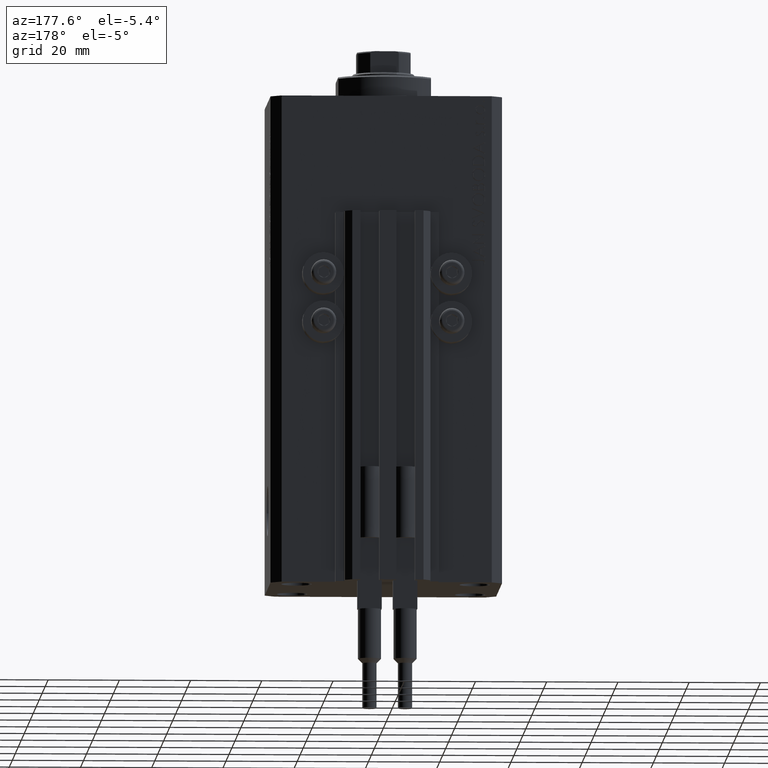
[diagram: clean part render]
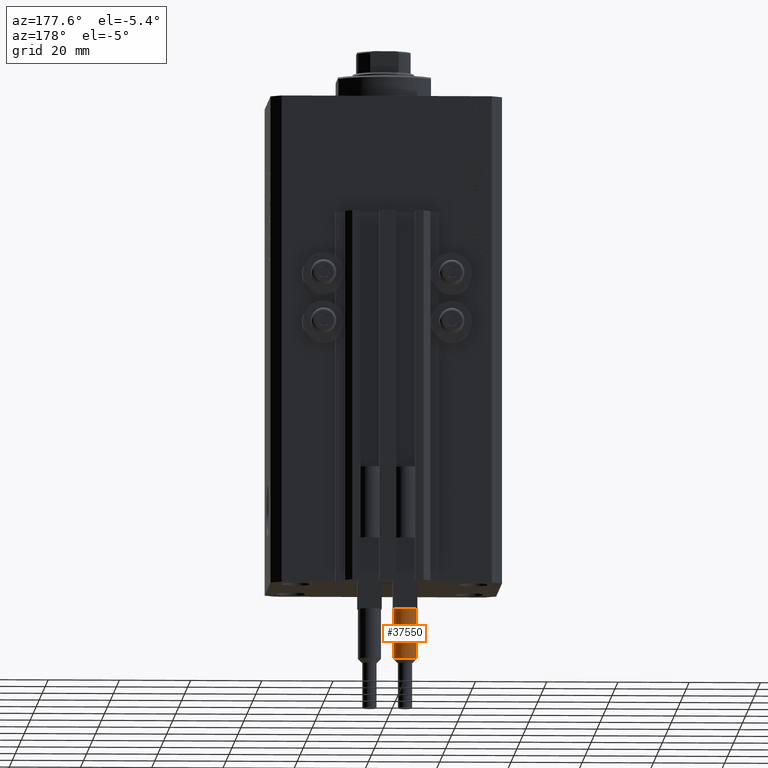
[diagram: same view with one face highlighted and labeled with its STEP entity id]
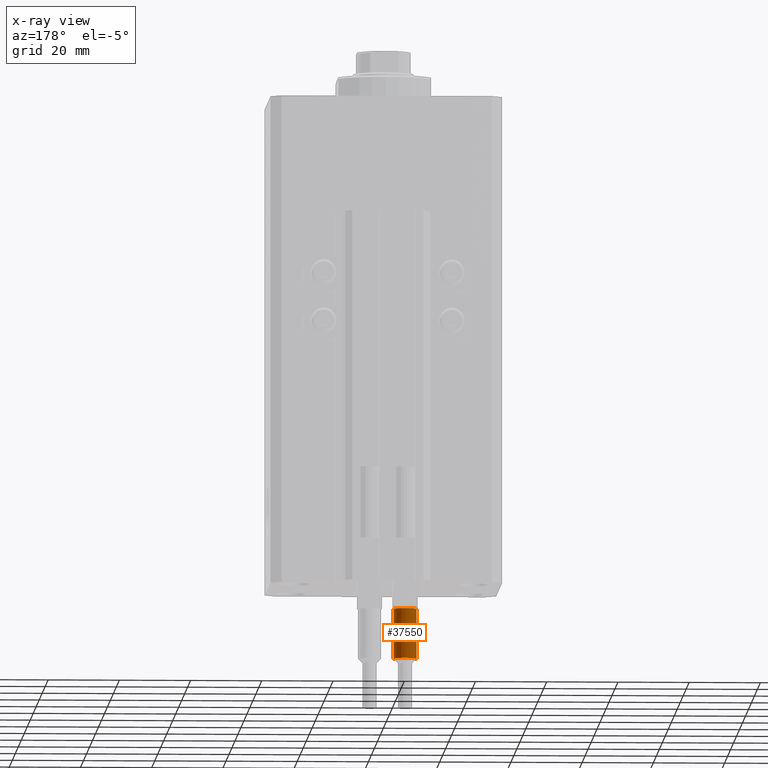
[diagram: x-ray of the same camera — body ghosted, the highlighted face saturated]
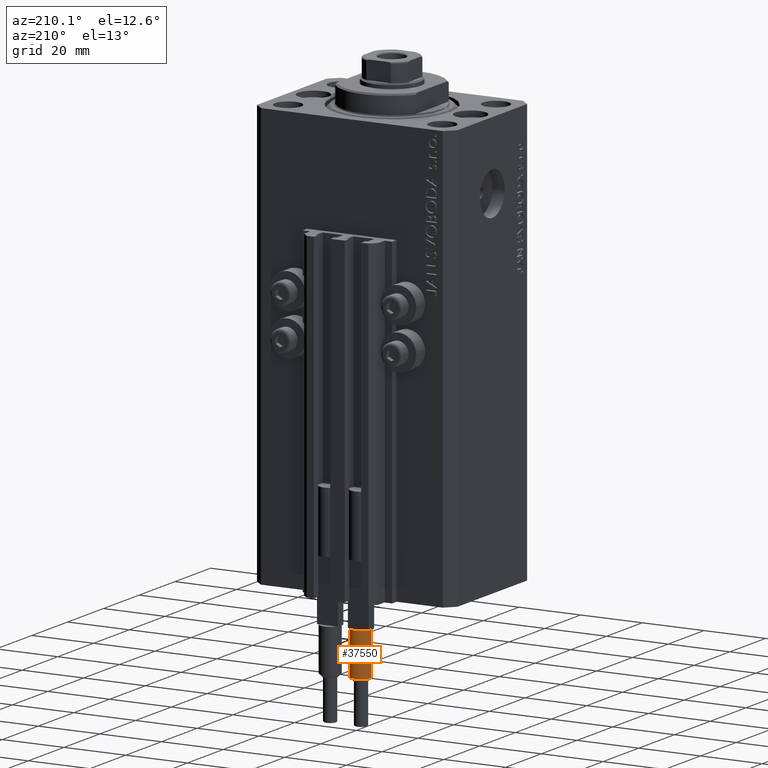
[diagram: same view with one face highlighted and labeled with its STEP entity id]
A machine part, auxiliary view. The second image highlights one B-rep face of the part: STEP entity #37550.
The next image is the same camera in x-ray: the body ghosted, the highlighted face saturated — about 0% of this face is hidden behind the body in this view.
A second angle (auxiliary view) of the same face is appended — the face is thin or edge-on in the first view.
In plain terms, the highlighted cylindrical surface (edge-blend (fillet) strip) has radius 3.25 mm, axis along (-0, -0, 1).
Its self-contained STEP definition (entity closure, byte-faithful):
#1335 = VERTEX_POINT ( 'NONE', #21337 ) ;
#1918 = EDGE_LOOP ( 'NONE', ( #47650, #30534, #33793, #23078, #33099, #17616 ) ) ;
#5021 = CARTESIAN_POINT ( 'NONE',  ( 0.000000000000000000, 0.000000000000000000, 40.00000000000000000 ) ) ;
#6322 = VERTEX_POINT ( 'NONE', #7562 ) ;
#7009 = EDGE_CURVE ( 'NONE', #44188, #24165, #47499, .T. ) ;
#7486 = DIRECTION ( 'NONE',  ( -0.000000000000000000, -0.000000000000000000, -1.000000000000000000 ) ) ;
#7562 = CARTESIAN_POINT ( 'NONE',  ( -3.250000000000000444, 0.000000000000000000, 53.99999999999998579 ) ) ;
#9304 = AXIS2_PLACEMENT_3D ( 'NONE', #39126, #24324, #42771 ) ;
#9656 = CIRCLE ( 'NONE', #15881, 3.250000000000000444 ) ;
#10310 = CARTESIAN_POINT ( 'NONE',  ( -2.883140648667699146, -1.500000000000000000, 40.00000000000000000 ) ) ;
#10823 = DIRECTION ( 'NONE',  ( 1.000000000000000000, 0.000000000000000000, 0.000000000000000000 ) ) ;
#11108 = DIRECTION ( 'NONE',  ( -0.000000000000000000, -0.000000000000000000, -1.000000000000000000 ) ) ;
#11446 = EDGE_CURVE ( 'NONE', #1335, #22577, #32204, .T. ) ;
#11754 = FACE_OUTER_BOUND ( 'NONE', #1918, .T. ) ;
#12535 = VECTOR ( 'NONE', #7486, 1000.000000000000000 ) ;
#12538 = DIRECTION ( 'NONE',  ( 1.000000000000000000, 0.000000000000000000, 0.000000000000000000 ) ) ;
#13640 = CARTESIAN_POINT ( 'NONE',  ( 3.250000000000000444, 3.980102097228898231E-16, 40.00000000000000000 ) ) ;
#14207 = DIRECTION ( 'NONE',  ( 1.000000000000000000, 0.000000000000000000, 0.000000000000000000 ) ) ;
#14475 = DIRECTION ( 'NONE',  ( 0.000000000000000000, 0.000000000000000000, 1.000000000000000000 ) ) ;
#15881 = AXIS2_PLACEMENT_3D ( 'NONE', #47746, #14475, #10823 ) ;
#16611 = VERTEX_POINT ( 'NONE', #40604 ) ;
#16901 = EDGE_CURVE ( 'NONE', #6322, #1335, #45101, .T. ) ;
#17616 = ORIENTED_EDGE ( 'NONE', *, *, #7009, .T. ) ;
#20785 = DIRECTION ( 'NONE',  ( 0.000000000000000000, 0.000000000000000000, 1.000000000000000000 ) ) ;
#21337 = CARTESIAN_POINT ( 'NONE',  ( -3.250000000000000444, 0.000000000000000000, 40.00000000000000000 ) ) ;
#21824 = LINE ( 'NONE', #36616, #12535 ) ;
#22408 = AXIS2_PLACEMENT_3D ( 'NONE', #30933, #23656, #30454 ) ;
#22577 = VERTEX_POINT ( 'NONE', #10310 ) ;
#23078 = ORIENTED_EDGE ( 'NONE', *, *, #11446, .T. ) ;
#23656 = DIRECTION ( 'NONE',  ( -0.000000000000000000, -0.000000000000000000, -1.000000000000000000 ) ) ;
#23669 = EDGE_CURVE ( 'NONE', #22577, #44188, #9656, .T. ) ;
#24165 = VERTEX_POINT ( 'NONE', #13640 ) ;
#24324 = DIRECTION ( 'NONE',  ( 0.000000000000000000, 0.000000000000000000, -1.000000000000000000 ) ) ;
#25708 = CARTESIAN_POINT ( 'NONE',  ( 2.883140648667699146, -1.500000000000000000, 40.00000000000000000 ) ) ;
#29324 = CARTESIAN_POINT ( 'NONE',  ( -3.250000000000000444, 0.000000000000000000, 56.00000000000000000 ) ) ;
#30246 = CIRCLE ( 'NONE', #9304, 3.250000000000000444 ) ;
#30454 = DIRECTION ( 'NONE',  ( -1.000000000000000000, 0.000000000000000000, 0.000000000000000000 ) ) ;
#30534 = ORIENTED_EDGE ( 'NONE', *, *, #40465, .T. ) ;
#30933 = CARTESIAN_POINT ( 'NONE',  ( 0.000000000000000000, 0.000000000000000000, 56.00000000000000000 ) ) ;
#32204 = CIRCLE ( 'NONE', #43846, 3.250000000000000444 ) ;
#33099 = ORIENTED_EDGE ( 'NONE', *, *, #23669, .T. ) ;
#33793 = ORIENTED_EDGE ( 'NONE', *, *, #16901, .T. ) ;
#34343 = AXIS2_PLACEMENT_3D ( 'NONE', #39938, #20785, #14207 ) ;
#36616 = CARTESIAN_POINT ( 'NONE',  ( 3.250000000000000444, 3.980102097228898231E-16, 56.00000000000000000 ) ) ;
#36696 = VECTOR ( 'NONE', #11108, 1000.000000000000000 ) ;
#37550 = ADVANCED_FACE ( 'NONE', ( #11754 ), #41859, .T. ) ;
#39126 = CARTESIAN_POINT ( 'NONE',  ( 0.000000000000000000, 0.000000000000000000, 53.99999999999998579 ) ) ;
#39938 = CARTESIAN_POINT ( 'NONE',  ( 0.000000000000000000, 0.000000000000000000, 40.00000000000000000 ) ) ;
#40465 = EDGE_CURVE ( 'NONE', #16611, #6322, #30246, .T. ) ;
#40604 = CARTESIAN_POINT ( 'NONE',  ( 3.250000000000000444, 3.980102097228898231E-16, 53.99999999999998579 ) ) ;
#41859 = CYLINDRICAL_SURFACE ( 'NONE', #22408, 3.250000000000000444 ) ;
#41924 = DIRECTION ( 'NONE',  ( 0.000000000000000000, 0.000000000000000000, 1.000000000000000000 ) ) ;
#42771 = DIRECTION ( 'NONE',  ( 1.000000000000000000, 0.000000000000000000, 0.000000000000000000 ) ) ;
#43846 = AXIS2_PLACEMENT_3D ( 'NONE', #5021, #41924, #12538 ) ;
#44188 = VERTEX_POINT ( 'NONE', #25708 ) ;
#44215 = EDGE_CURVE ( 'NONE', #16611, #24165, #21824, .T. ) ;
#45101 = LINE ( 'NONE', #29324, #36696 ) ;
#47499 = CIRCLE ( 'NONE', #34343, 3.250000000000000444 ) ;
#47650 = ORIENTED_EDGE ( 'NONE', *, *, #44215, .F. ) ;
#47746 = CARTESIAN_POINT ( 'NONE',  ( 0.000000000000000000, 0.000000000000000000, 40.00000000000000000 ) ) ;